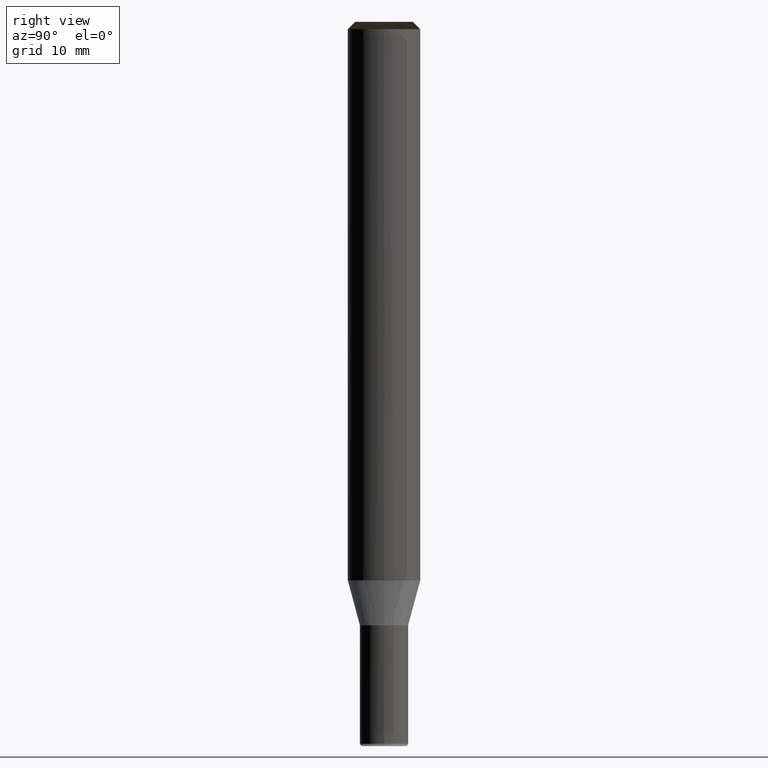
[diagram: clean part render]
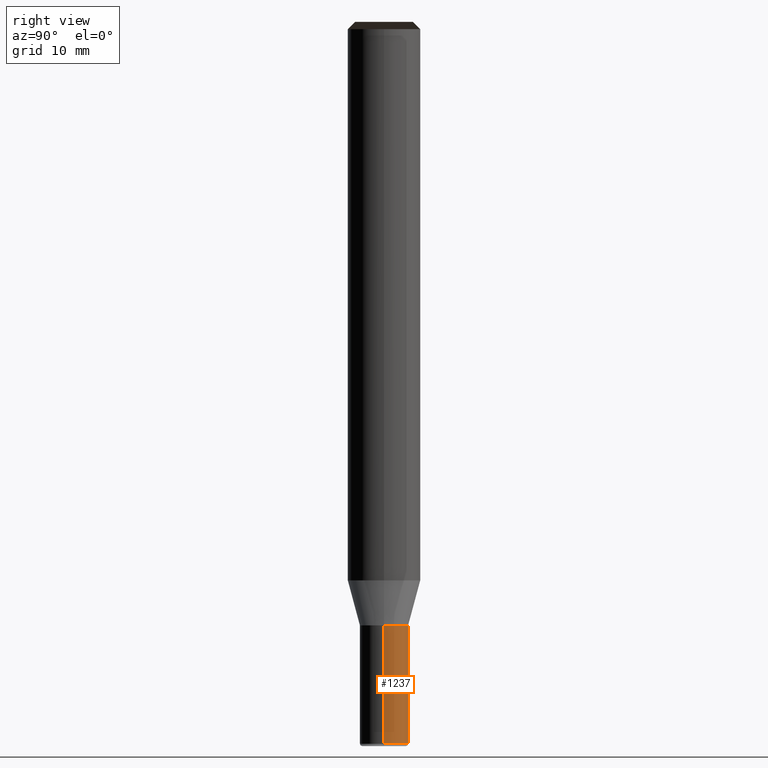
[diagram: same view with one face highlighted and labeled with its STEP entity id]
A machine part, right view. The second image highlights one B-rep face of the part: STEP entity #1237.
In plain terms, the highlighted face is a freeform B-spline surface patch.
Its self-contained STEP definition (entity closure, byte-faithful):
#1119=CARTESIAN_POINT('',(2.0,0.0,-13.532050807569));
#1120=CARTESIAN_POINT('',(2.0,2.0,-13.532050807569));
#1121=CARTESIAN_POINT('',(0.0,2.0,-13.532050807569));
#1122=CARTESIAN_POINT('',(-2.0,2.0,-13.532050807569));
#1123=CARTESIAN_POINT('',(-2.0,0.0,-13.532050807569));
#1124=CARTESIAN_POINT('',(2.0,0.0,-3.732050807569));
#1125=CARTESIAN_POINT('',(2.0,2.0,-3.732050807569));
#1126=CARTESIAN_POINT('',(0.0,2.0,-3.732050807569));
#1127=CARTESIAN_POINT('',(-2.0,2.0,-3.732050807569));
#1128=CARTESIAN_POINT('',(-2.0,0.0,-3.732050807569));
#1218=(
BOUNDED_SURFACE()
B_SPLINE_SURFACE(1,2,(
(#1119,#1120,#1121,#1122,#1123),
(#1124,#1125,#1126,#1127,#1128)
), .UNSPECIFIED.,.F.,.F.,.F.)
B_SPLINE_SURFACE_WITH_KNOTS((2,2),(3,2,3),(
0.0,1.0),(
0.0,0.5,1.0), .UNSPECIFIED.)
GEOMETRIC_REPRESENTATION_ITEM()
RATIONAL_B_SPLINE_SURFACE(((1.0,0.707106781187,1.0,0.707106781187,1.0),
(1.0,0.707106781187,1.0,0.707106781187,1.0)
))
REPRESENTATION_ITEM('')
SURFACE()
);
#1219=(
BOUNDED_CURVE()
B_SPLINE_CURVE(2,(#1124,#1125,#1126,#1127,#1128),.UNSPECIFIED.,.F.,.F.)
B_SPLINE_CURVE_WITH_KNOTS((3,2,3),
(0.0,0.5,1.0),.UNSPECIFIED.)
CURVE()
GEOMETRIC_REPRESENTATION_ITEM()
RATIONAL_B_SPLINE_CURVE((1.0,0.707106781187,1.0,0.707106781187,1.0))
REPRESENTATION_ITEM('')
);
#1220=(
BOUNDED_CURVE()
B_SPLINE_CURVE(1,(#1128,#1123),.UNSPECIFIED.,.F.,.F.)
B_SPLINE_CURVE_WITH_KNOTS((2,2),
(0.0,1.0),.UNSPECIFIED.)
CURVE()
GEOMETRIC_REPRESENTATION_ITEM()
RATIONAL_B_SPLINE_CURVE((1.0,1.0))
REPRESENTATION_ITEM('')
);
#1221=(
BOUNDED_CURVE()
B_SPLINE_CURVE(2,(#1123,#1122,#1121,#1120,#1119),.UNSPECIFIED.,.F.,.F.)
B_SPLINE_CURVE_WITH_KNOTS((3,2,3),
(0.0,0.5,1.0),.UNSPECIFIED.)
CURVE()
GEOMETRIC_REPRESENTATION_ITEM()
RATIONAL_B_SPLINE_CURVE((1.0,0.707106781187,1.0,0.707106781187,1.0))
REPRESENTATION_ITEM('')
);
#1222=(
BOUNDED_CURVE()
B_SPLINE_CURVE(1,(#1119,#1124),.UNSPECIFIED.,.F.,.F.)
B_SPLINE_CURVE_WITH_KNOTS((2,2),
(0.0,1.0),.UNSPECIFIED.)
CURVE()
GEOMETRIC_REPRESENTATION_ITEM()
RATIONAL_B_SPLINE_CURVE((1.0,1.0))
REPRESENTATION_ITEM('')
);
#1223=VERTEX_POINT('',#1119);
#1224=VERTEX_POINT('',#1123);
#1225=VERTEX_POINT('',#1124);
#1226=VERTEX_POINT('',#1128);
#1227=EDGE_CURVE('',#1225,#1226,#1219,.T.);
#1228=EDGE_CURVE('',#1226,#1224,#1220,.T.);
#1229=EDGE_CURVE('',#1224,#1223,#1221,.T.);
#1230=EDGE_CURVE('',#1223,#1225,#1222,.T.);
#1231=ORIENTED_EDGE('',*,*,#1227,.T.);
#1232=ORIENTED_EDGE('',*,*,#1228,.T.);
#1233=ORIENTED_EDGE('',*,*,#1229,.T.);
#1234=ORIENTED_EDGE('',*,*,#1230,.T.);
#1235=EDGE_LOOP('',(#1231,#1232,#1233,#1234));
#1236=FACE_OUTER_BOUND('',#1235,.T.);
#1237=ADVANCED_FACE('',(#1236),#1218,.T.);